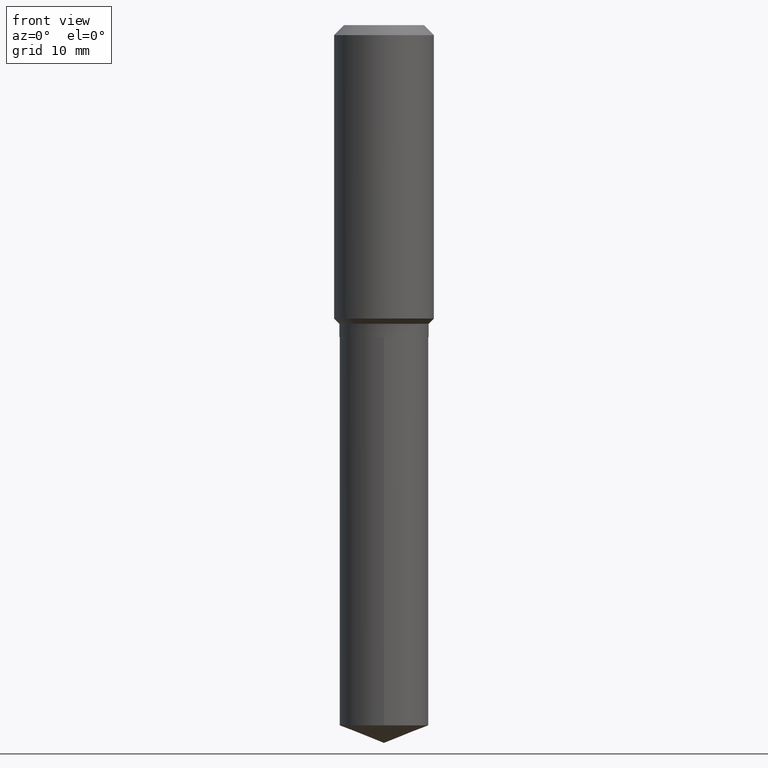
[diagram: clean part render]
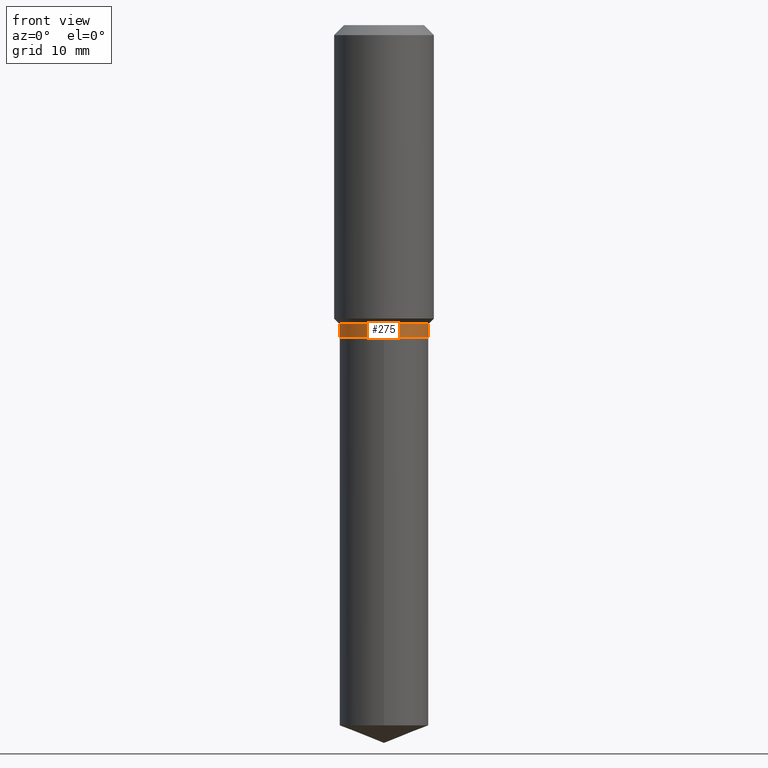
[diagram: same view with one face highlighted and labeled with its STEP entity id]
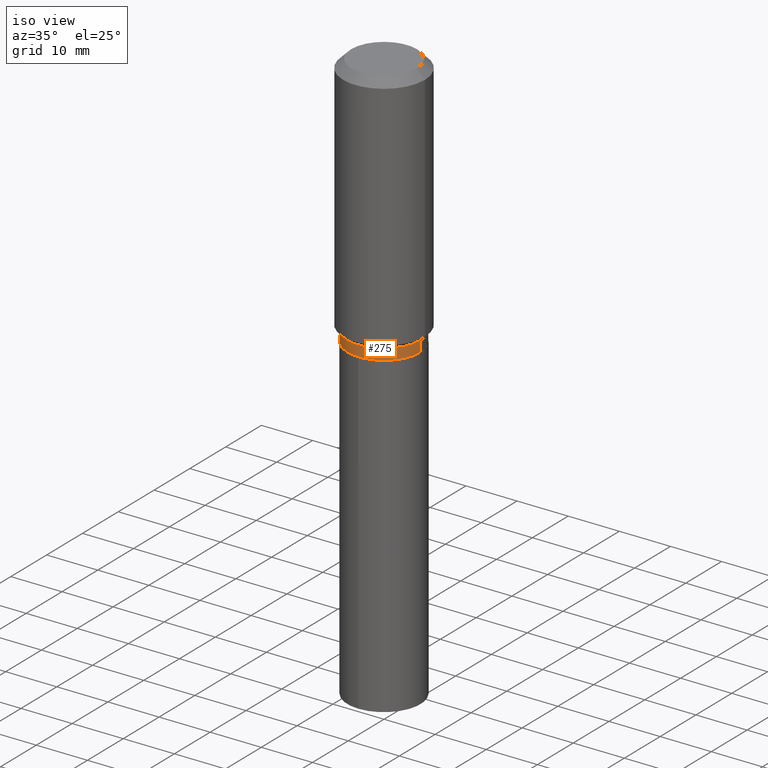
[diagram: same view with one face highlighted and labeled with its STEP entity id]
A machine part, front view. The second image highlights one B-rep face of the part: STEP entity #275.
A second angle (iso view) of the same face is appended — the face is thin or edge-on in the first view.
In plain terms, the highlighted cylindrical surface (partial cylindrical patch) has radius 7.1437 mm, axis along (-0, 0, 1).
Its self-contained STEP definition (entity closure, byte-faithful):
#1 = ORIENTED_EDGE ( 'NONE', *, *, #466, .T. ) ;
#10 = EDGE_LOOP ( 'NONE', ( #41, #243, #1, #232 ) ) ;
#15 = AXIS2_PLACEMENT_3D ( 'NONE', #31, #258, #405 ) ;
#31 = CARTESIAN_POINT ( 'NONE',  ( 4.812682610572347912E-29, -6.871235274843308626E-15, -1.967999999999999527 ) ) ;
#38 = CARTESIAN_POINT ( 'NONE',  ( -0.2812500000000000000, -4.726366188353557576E-15, -1.967999999999999527 ) ) ;
#41 = ORIENTED_EDGE ( 'NONE', *, *, #310, .F. ) ;
#44 = DIRECTION ( 'NONE',  ( 1.000000000000000000, -6.982962677686266711E-15, 0.000000000000000000 ) ) ;
#110 = VECTOR ( 'NONE', #143, 39.37007874015748143 ) ;
#143 = DIRECTION ( 'NONE',  ( -2.445468806185136877E-29, 3.491481338843145188E-15, 1.000000000000000000 ) ) ;
#145 = CARTESIAN_POINT ( 'NONE',  ( 0.000000000000000000, 0.000000000000000000, 0.000000000000000000 ) ) ;
#181 = VECTOR ( 'NONE', #415, 39.37007874015748143 ) ;
#188 = AXIS2_PLACEMENT_3D ( 'NONE', #237, #315, #44 ) ;
#191 = CARTESIAN_POINT ( 'NONE',  ( 0.2812500000000000000, -8.835193527942572716E-15, -1.967999999999999527 ) ) ;
#197 = VERTEX_POINT ( 'NONE', #38 ) ;
#223 = CYLINDRICAL_SURFACE ( 'NONE', #299, 0.2812500000000000000 ) ;
#232 = ORIENTED_EDGE ( 'NONE', *, *, #389, .F. ) ;
#233 = CARTESIAN_POINT ( 'NONE',  ( 0.2812500000000000000, -1.963958253099262512E-15, 1.371424718192607012E-29 ) ) ;
#237 = CARTESIAN_POINT ( 'NONE',  ( 4.607507777733415285E-29, -6.578299990514369283E-15, -1.884099999999999664 ) ) ;
#243 = ORIENTED_EDGE ( 'NONE', *, *, #339, .T. ) ;
#258 = DIRECTION ( 'NONE',  ( -2.445468806185136597E-29, 3.491481338843145583E-15, 1.000000000000000000 ) ) ;
#262 = DIRECTION ( 'NONE',  ( 1.000000000000000000, -6.982962677686266711E-15, 4.876176775795935793E-29 ) ) ;
#268 = LINE ( 'NONE', #233, #181 ) ;
#275 = ADVANCED_FACE ( 'NONE', ( #409 ), #223, .T. ) ;
#277 = VERTEX_POINT ( 'NONE', #337 ) ;
#299 = AXIS2_PLACEMENT_3D ( 'NONE', #145, #367, #262 ) ;
#300 = CARTESIAN_POINT ( 'NONE',  ( -0.2812500000000000000, -4.726366188353557576E-15, -1.884099999999999664 ) ) ;
#310 = EDGE_CURVE ( 'NONE', #197, #346, #480, .T. ) ;
#315 = DIRECTION ( 'NONE',  ( -2.445468806185136597E-29, 3.491481338843145583E-15, 1.000000000000000000 ) ) ;
#337 = CARTESIAN_POINT ( 'NONE',  ( 0.2812500000000000000, -8.542258243613632584E-15, -1.884099999999999664 ) ) ;
#339 = EDGE_CURVE ( 'NONE', #197, #386, #471, .T. ) ;
#346 = VERTEX_POINT ( 'NONE', #300 ) ;
#367 = DIRECTION ( 'NONE',  ( -2.445468806185136597E-29, 3.491481338843145583E-15, 1.000000000000000000 ) ) ;
#369 = CARTESIAN_POINT ( 'NONE',  ( -0.2812500000000000000, 1.998401444325281773E-15, -1.383450494134192269E-29 ) ) ;
#374 = CIRCLE ( 'NONE', #188, 0.2812500000000000000 ) ;
#386 = VERTEX_POINT ( 'NONE', #191 ) ;
#389 = EDGE_CURVE ( 'NONE', #346, #277, #374, .T. ) ;
#405 = DIRECTION ( 'NONE',  ( 1.000000000000000000, -6.982962677686269866E-15, 0.000000000000000000 ) ) ;
#409 = FACE_OUTER_BOUND ( 'NONE', #10, .T. ) ;
#415 = DIRECTION ( 'NONE',  ( -2.445468806185136877E-29, 3.491481338843145188E-15, 1.000000000000000000 ) ) ;
#466 = EDGE_CURVE ( 'NONE', #386, #277, #268, .T. ) ;
#471 = CIRCLE ( 'NONE', #15, 0.2812500000000000000 ) ;
#480 = LINE ( 'NONE', #369, #110 ) ;